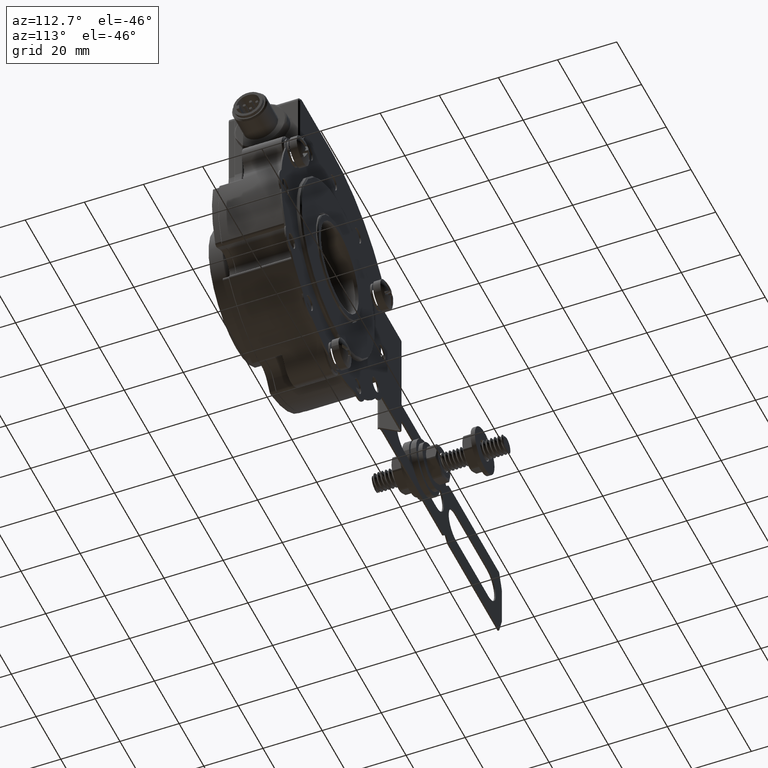
[diagram: clean part render]
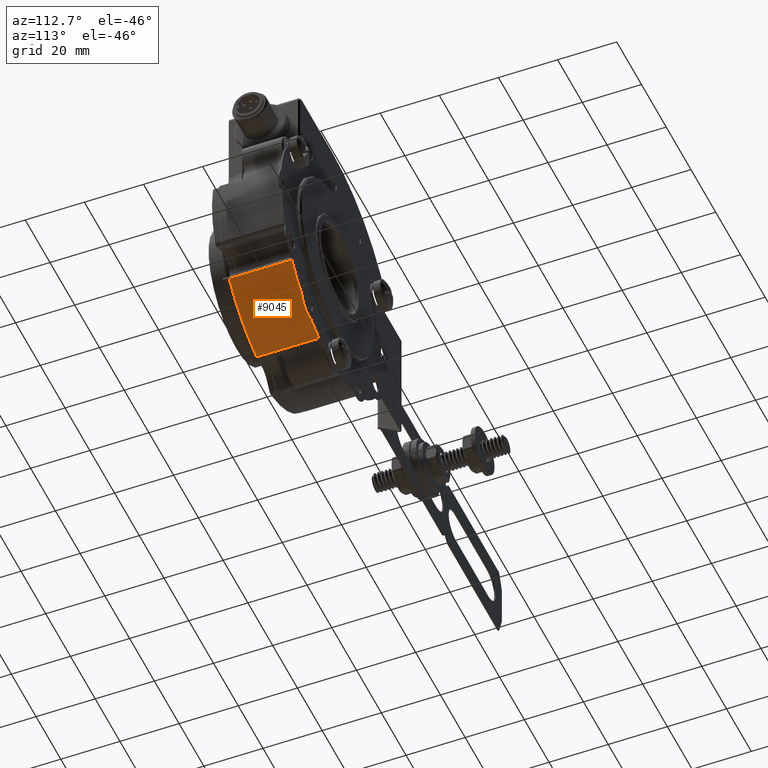
[diagram: same view with one face highlighted and labeled with its STEP entity id]
A machine part, auxiliary view. The second image highlights one B-rep face of the part: STEP entity #9045.
In plain terms, the highlighted cylindrical surface (partial cylindrical patch) has radius 40 mm, axis along (-0, -1, -0).
Its self-contained STEP definition (entity closure, byte-faithful):
#250 = CARTESIAN_POINT ( 'NONE',  ( 31.15168532505678600, 23.99999999999999300, -25.09128337508151700 ) ) ;
#2762 = DIRECTION ( 'NONE',  ( -0.0000000000000000000, -1.000000000000000000, -0.0000000000000000000 ) ) ;
#2932 = CARTESIAN_POINT ( 'NONE',  ( 8.951015172422273700, 23.99999999999999300, -38.98562975486052600 ) ) ;
#5726 = CARTESIAN_POINT ( 'NONE',  ( 0.0000000000000000000, 0.1999999999999641000, 0.0000000000000000000 ) ) ;
#6834 = CARTESIAN_POINT ( 'NONE',  ( 8.951015172422273700, 0.1999999999999641000, -38.98562975486052600 ) ) ;
#7375 = VERTEX_POINT ( 'NONE', #41458 ) ;
#8268 = VECTOR ( 'NONE', #21964, 1000.000000000000000 ) ;
#9045 = ADVANCED_FACE ( 'NONE', ( #37840 ), #17409, .T. ) ;
#9372 = DIRECTION ( 'NONE',  ( 0.0000000000000000000, 0.0000000000000000000, 1.000000000000000000 ) ) ;
#11135 = VERTEX_POINT ( 'NONE', #42575 ) ;
#13802 = DIRECTION ( 'NONE',  ( -0.0000000000000000000, -1.000000000000000000, -0.0000000000000000000 ) ) ;
#15984 = VECTOR ( 'NONE', #28101, 1000.000000000000000 ) ;
#16762 = LINE ( 'NONE', #250, #8268 ) ;
#17409 = CYLINDRICAL_SURFACE ( 'NONE', #34265, 40.00000000000000000 ) ;
#17425 = CARTESIAN_POINT ( 'NONE',  ( 0.0000000000000000000, 23.99999999999999300, 0.0000000000000000000 ) ) ;
#19931 = AXIS2_PLACEMENT_3D ( 'NONE', #24462, #2762, #28084 ) ;
#21099 = VERTEX_POINT ( 'NONE', #6834 ) ;
#21964 = DIRECTION ( 'NONE',  ( -0.0000000000000000000, -1.000000000000000000, -0.0000000000000000000 ) ) ;
#23439 = EDGE_LOOP ( 'NONE', ( #37851, #29543, #24775, #25504 ) ) ;
#24462 = CARTESIAN_POINT ( 'NONE',  ( 0.0000000000000000000, 21.50000000000001800, 0.0000000000000000000 ) ) ;
#24775 = ORIENTED_EDGE ( 'NONE', *, *, #46219, .F. ) ;
#25504 = ORIENTED_EDGE ( 'NONE', *, *, #37933, .T. ) ;
#26922 = EDGE_CURVE ( 'NONE', #7375, #11135, #16762, .T. ) ;
#28084 = DIRECTION ( 'NONE',  ( 0.0000000000000000000, 0.0000000000000000000, -1.000000000000000000 ) ) ;
#28101 = DIRECTION ( 'NONE',  ( -0.0000000000000000000, -1.000000000000000000, -0.0000000000000000000 ) ) ;
#28761 = CIRCLE ( 'NONE', #19931, 40.00000000000000000 ) ;
#29525 = CIRCLE ( 'NONE', #35001, 40.00000000000000000 ) ;
#29543 = ORIENTED_EDGE ( 'NONE', *, *, #30291, .T. ) ;
#30291 = EDGE_CURVE ( 'NONE', #11135, #21099, #29525, .T. ) ;
#31101 = DIRECTION ( 'NONE',  ( 0.0000000000000000000, 1.000000000000000000, 0.0000000000000000000 ) ) ;
#34091 = CARTESIAN_POINT ( 'NONE',  ( 8.951015172422273700, 21.50000000000000000, -38.98562975486052600 ) ) ;
#34265 = AXIS2_PLACEMENT_3D ( 'NONE', #17425, #13802, #42802 ) ;
#35001 = AXIS2_PLACEMENT_3D ( 'NONE', #5726, #31101, #9372 ) ;
#37840 = FACE_OUTER_BOUND ( 'NONE', #23439, .T. ) ;
#37851 = ORIENTED_EDGE ( 'NONE', *, *, #26922, .T. ) ;
#37933 = EDGE_CURVE ( 'NONE', #43589, #7375, #28761, .T. ) ;
#41458 = CARTESIAN_POINT ( 'NONE',  ( 31.15168532505678600, 21.50000000000000000, -25.09128337508151700 ) ) ;
#42575 = CARTESIAN_POINT ( 'NONE',  ( 31.15168532505678600, 0.1999999999999641000, -25.09128337508151700 ) ) ;
#42802 = DIRECTION ( 'NONE',  ( 0.0000000000000000000, 0.0000000000000000000, -1.000000000000000000 ) ) ;
#43589 = VERTEX_POINT ( 'NONE', #34091 ) ;
#46029 = LINE ( 'NONE', #2932, #15984 ) ;
#46219 = EDGE_CURVE ( 'NONE', #43589, #21099, #46029, .T. ) ;